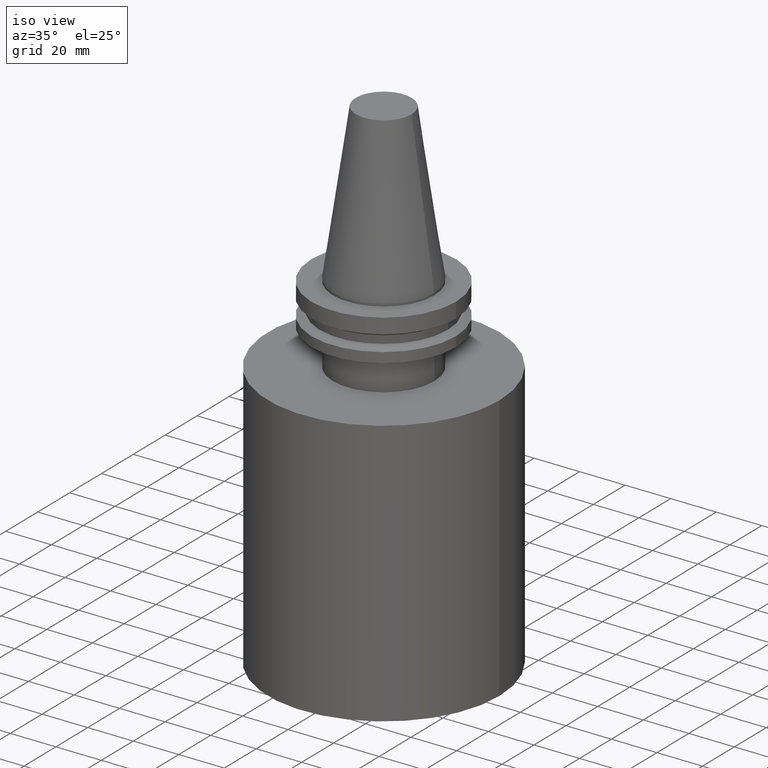
[diagram: clean part render]
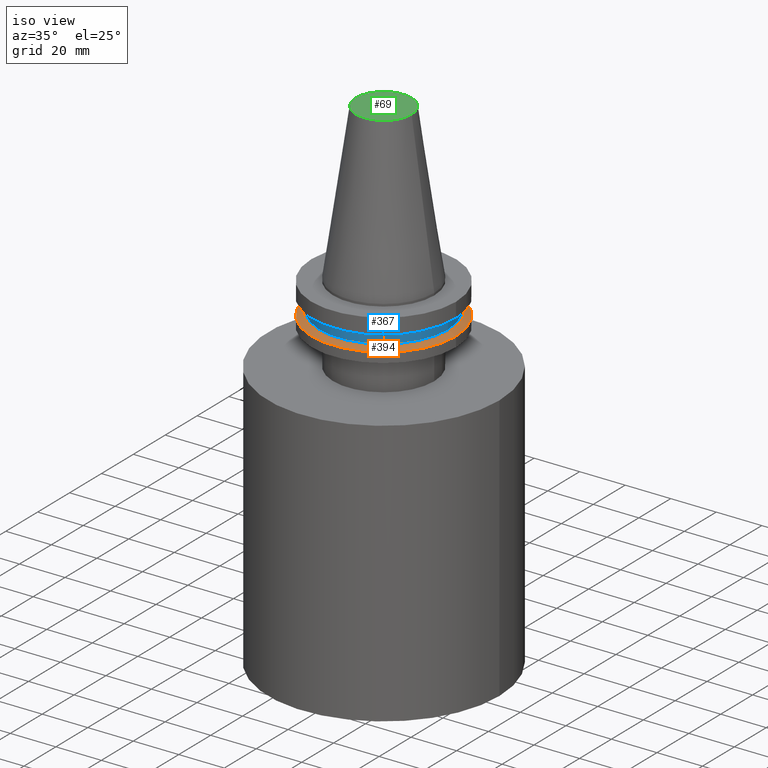
[diagram: same view with three faces highlighted in distinct colors, each labeled with its STEP entity id]
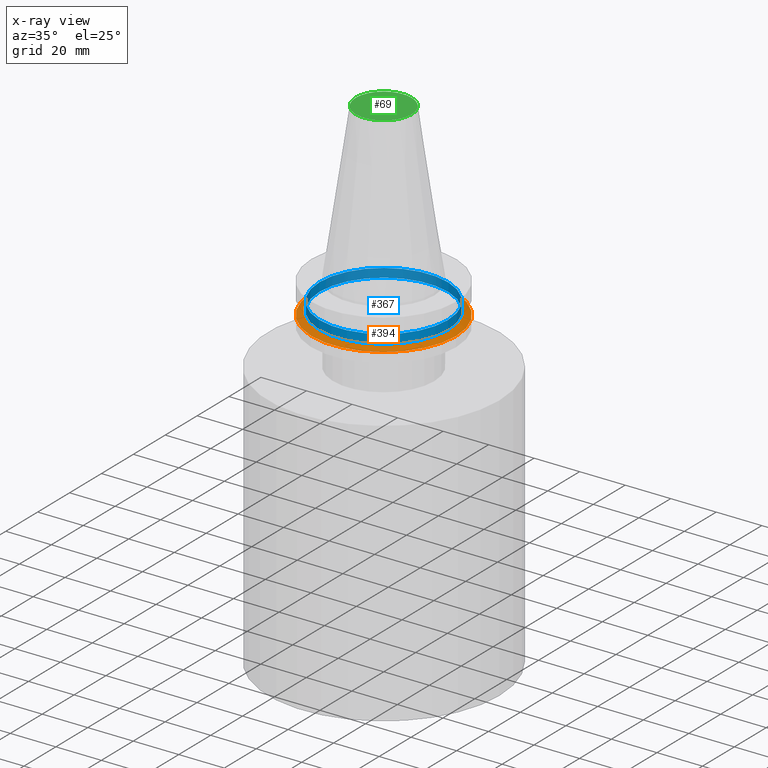
[diagram: x-ray of the same camera — body ghosted, the three highlighted faces saturated]
A machine part, iso view with three faces highlighted in distinct colors.
The next image is the same camera in x-ray (body ghosted, the three faces saturated) — at least one of them is partly hidden behind the body in this view.
Their STEP definitions:

[orange] entity #394 — the highlighted conical surface has half-angle 60 deg.
#13 = DIRECTION ( 'NONE',  ( -0.000000000000000000, -0.000000000000000000, 1.000000000000000000 ) ) ;
#54 = CARTESIAN_POINT ( 'NONE',  ( 28.97919780457008088, 0.000000000000000000, -13.05499999999999794 ) ) ;
#57 = FACE_OUTER_BOUND ( 'NONE', #252, .T. ) ;
#67 = ORIENTED_EDGE ( 'NONE', *, *, #140, .F. ) ;
#113 = CIRCLE ( 'NONE', #216, 31.75000000000000000 ) ;
#140 = EDGE_CURVE ( 'NONE', #303, #303, #293, .T. ) ;
#141 = CONICAL_SURFACE ( 'NONE', #250, 31.75000000000000000, 1.047197551196597853 ) ;
#177 = VERTEX_POINT ( 'NONE', #304 ) ;
#181 = CARTESIAN_POINT ( 'NONE',  ( 0.000000000000000000, 0.000000000000000000, -14.65472339340266572 ) ) ;
#205 = DIRECTION ( 'NONE',  ( 1.000000000000000000, 0.000000000000000000, 0.000000000000000000 ) ) ;
#216 = AXIS2_PLACEMENT_3D ( 'NONE', #296, #13, #205 ) ;
#227 = EDGE_CURVE ( 'NONE', #177, #177, #113, .T. ) ;
#250 = AXIS2_PLACEMENT_3D ( 'NONE', #181, #276, #309 ) ;
#252 = EDGE_LOOP ( 'NONE', ( #338 ) ) ;
#264 = DIRECTION ( 'NONE',  ( 1.000000000000000000, 0.000000000000000000, 0.000000000000000000 ) ) ;
#276 = DIRECTION ( 'NONE',  ( 0.000000000000000000, 0.000000000000000000, -1.000000000000000000 ) ) ;
#293 = CIRCLE ( 'NONE', #361, 28.97919780457008088 ) ;
#296 = CARTESIAN_POINT ( 'NONE',  ( 0.000000000000000000, 0.000000000000000000, -14.65472339340266572 ) ) ;
#303 = VERTEX_POINT ( 'NONE', #54 ) ;
#304 = CARTESIAN_POINT ( 'NONE',  ( 31.75000000000000000, 0.000000000000000000, -14.65472339340266572 ) ) ;
#309 = DIRECTION ( 'NONE',  ( -1.000000000000000000, 0.000000000000000000, 0.000000000000000000 ) ) ;
#335 = FACE_BOUND ( 'NONE', #376, .T. ) ;
#338 = ORIENTED_EDGE ( 'NONE', *, *, #227, .T. ) ;
#352 = CARTESIAN_POINT ( 'NONE',  ( 0.000000000000000000, 0.000000000000000000, -13.05499999999999794 ) ) ;
#361 = AXIS2_PLACEMENT_3D ( 'NONE', #352, #380, #264 ) ;
#376 = EDGE_LOOP ( 'NONE', ( #67 ) ) ;
#380 = DIRECTION ( 'NONE',  ( -0.000000000000000000, -0.000000000000000000, 1.000000000000000000 ) ) ;
#394 = ADVANCED_FACE ( 'NONE', ( #335, #57 ), #141, .T. ) ;

[blue] entity #367 — the highlighted cylindrical surface (bore or boss wall) has radius 28.18 mm, axis along (-0, -0, 1).
#19 = FACE_OUTER_BOUND ( 'NONE', #30, .T. ) ;
#24 = AXIS2_PLACEMENT_3D ( 'NONE', #386, #364, #333 ) ;
#30 = EDGE_LOOP ( 'NONE', ( #159 ) ) ;
#34 = EDGE_CURVE ( 'NONE', #207, #207, #129, .T. ) ;
#36 = DIRECTION ( 'NONE',  ( 1.000000000000000000, 0.000000000000000000, 0.000000000000000000 ) ) ;
#59 = CARTESIAN_POINT ( 'NONE',  ( 0.000000000000000000, 0.000000000000000000, -9.204999999999991189 ) ) ;
#101 = CIRCLE ( 'NONE', #354, 28.17999999999999972 ) ;
#118 = FACE_OUTER_BOUND ( 'NONE', #163, .T. ) ;
#129 = CIRCLE ( 'NONE', #385, 28.17999999999999972 ) ;
#156 = CARTESIAN_POINT ( 'NONE',  ( 0.000000000000000000, 0.000000000000000000, -13.05499999999999794 ) ) ;
#159 = ORIENTED_EDGE ( 'NONE', *, *, #34, .T. ) ;
#163 = EDGE_LOOP ( 'NONE', ( #363 ) ) ;
#179 = CYLINDRICAL_SURFACE ( 'NONE', #24, 28.17999999999999972 ) ;
#187 = DIRECTION ( 'NONE',  ( -0.000000000000000000, -0.000000000000000000, 1.000000000000000000 ) ) ;
#207 = VERTEX_POINT ( 'NONE', #329 ) ;
#225 = CARTESIAN_POINT ( 'NONE',  ( 28.17999999999999972, 0.000000000000000000, -9.204999999999991189 ) ) ;
#257 = VERTEX_POINT ( 'NONE', #225 ) ;
#280 = DIRECTION ( 'NONE',  ( -0.000000000000000000, -0.000000000000000000, 1.000000000000000000 ) ) ;
#301 = DIRECTION ( 'NONE',  ( 1.000000000000000000, 0.000000000000000000, 0.000000000000000000 ) ) ;
#316 = EDGE_CURVE ( 'NONE', #257, #257, #101, .T. ) ;
#329 = CARTESIAN_POINT ( 'NONE',  ( 28.17999999999999972, 0.000000000000000000, -13.05499999999999794 ) ) ;
#333 = DIRECTION ( 'NONE',  ( 1.000000000000000000, 0.000000000000000000, 0.000000000000000000 ) ) ;
#354 = AXIS2_PLACEMENT_3D ( 'NONE', #59, #280, #301 ) ;
#363 = ORIENTED_EDGE ( 'NONE', *, *, #316, .F. ) ;
#364 = DIRECTION ( 'NONE',  ( -0.000000000000000000, -0.000000000000000000, 1.000000000000000000 ) ) ;
#367 = ADVANCED_FACE ( 'NONE', ( #118, #19 ), #179, .T. ) ;
#385 = AXIS2_PLACEMENT_3D ( 'NONE', #156, #187, #36 ) ;
#386 = CARTESIAN_POINT ( 'NONE',  ( 0.000000000000000000, 0.000000000000000000, 68.25000000000000000 ) ) ;

[green] entity #69 — the highlighted planar face has unit normal (0, 0, -1).
#17 = PLANE ( 'NONE',  #313 ) ;
#28 = VERTEX_POINT ( 'NONE', #346 ) ;
#69 = ADVANCED_FACE ( 'NONE', ( #112 ), #17, .F. ) ;
#112 = FACE_OUTER_BOUND ( 'NONE', #262, .T. ) ;
#136 = CARTESIAN_POINT ( 'NONE',  ( 0.000000000000000000, 12.27178102086201150, 68.25000000000000000 ) ) ;
#167 = DIRECTION ( 'NONE',  ( -1.000000000000000000, 0.000000000000000000, -0.000000000000000000 ) ) ;
#246 = CARTESIAN_POINT ( 'NONE',  ( 0.000000000000000000, 0.000000000000000000, 68.25000000000000000 ) ) ;
#262 = EDGE_LOOP ( 'NONE', ( #334 ) ) ;
#271 = DIRECTION ( 'NONE',  ( 0.000000000000000000, 0.000000000000000000, -1.000000000000000000 ) ) ;
#277 = DIRECTION ( 'NONE',  ( -0.000000000000000000, -0.000000000000000000, 1.000000000000000000 ) ) ;
#278 = CIRCLE ( 'NONE', #390, 12.27178102086201150 ) ;
#313 = AXIS2_PLACEMENT_3D ( 'NONE', #136, #271, #167 ) ;
#334 = ORIENTED_EDGE ( 'NONE', *, *, #350, .T. ) ;
#346 = CARTESIAN_POINT ( 'NONE',  ( 12.27178102086201150, 0.000000000000000000, 68.25000000000000000 ) ) ;
#350 = EDGE_CURVE ( 'NONE', #28, #28, #278, .T. ) ;
#362 = DIRECTION ( 'NONE',  ( 1.000000000000000000, 0.000000000000000000, 0.000000000000000000 ) ) ;
#390 = AXIS2_PLACEMENT_3D ( 'NONE', #246, #277, #362 ) ;